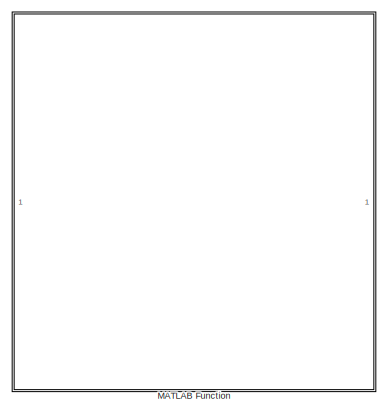
[diagram: root canvas - part 1/2, top right region]
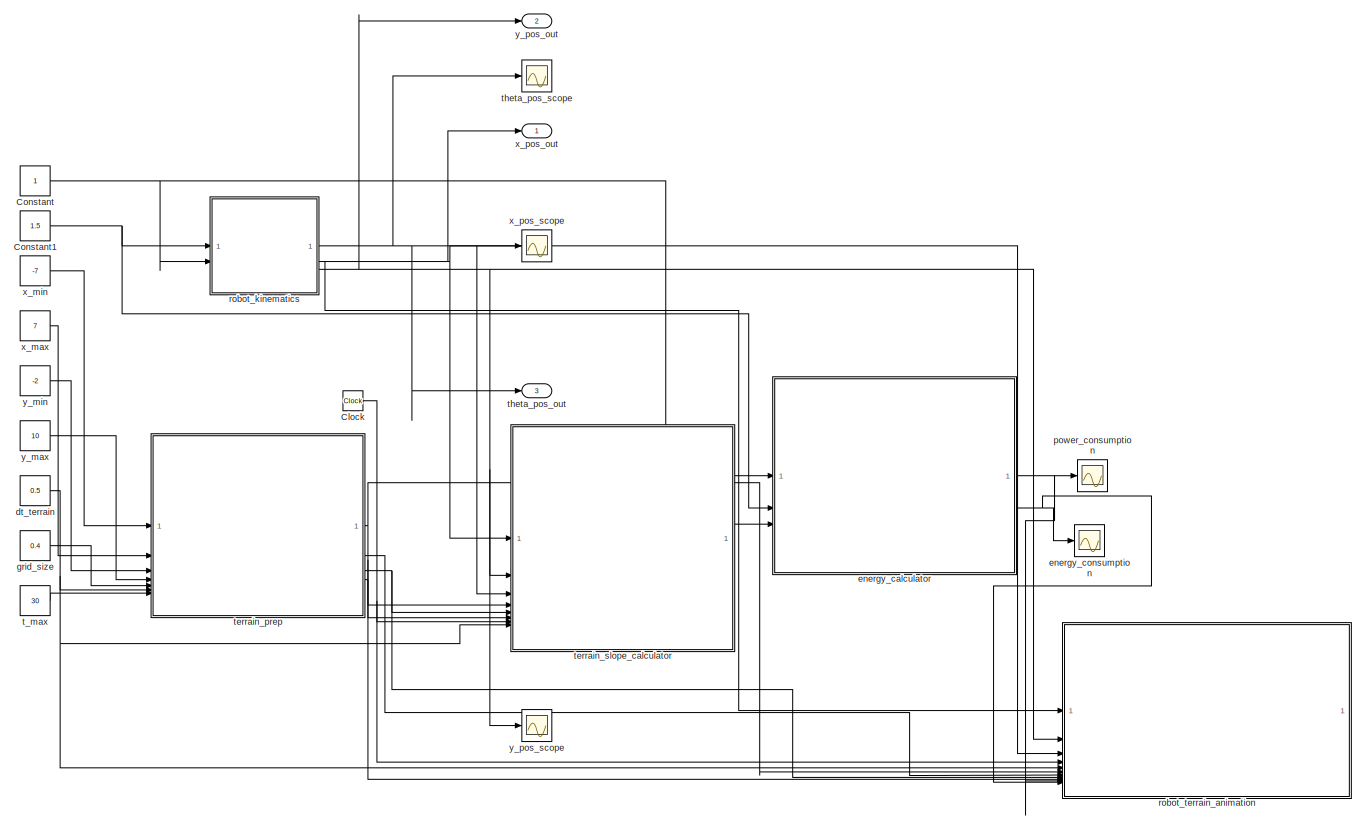
[diagram: root canvas - part 2/2, most of the canvas]
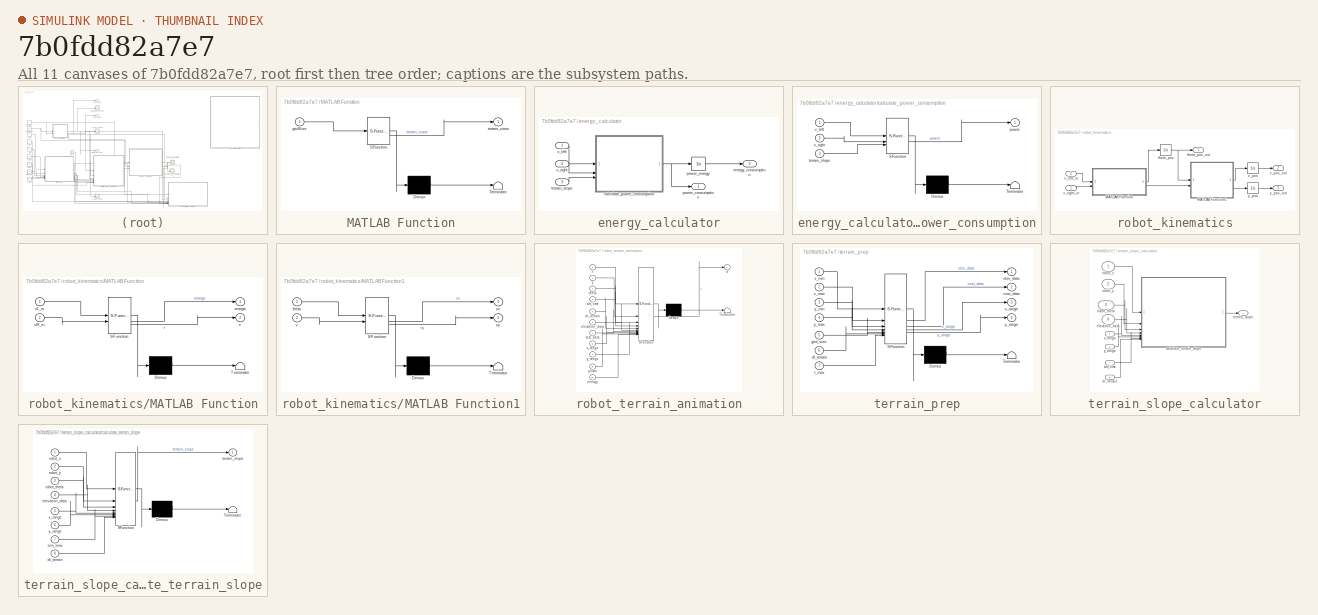
[diagram: thumbnail index - all 11 canvases of the model, root first then tree order]
MODEL slx_7b0fdd82a7e7
KIND model
CONFIG AbsTol = auto
CONFIG EnableMultiTasking = off
CONFIG FixedStep = 0.01
CONFIG MaxStep = 0.1
CONFIG MinStep = auto
CONFIG RelTol = 1e-3
CONFIG SampleTimeConstraint = Unconstrained
CONFIG SolverName = VariableStepAuto
CONFIG StartTime = 0.0
CONFIG StopTime = 50
BLOCK [Clock] Clock
BLOCK [Constant] Constant
BLOCK [Constant] Constant1
  Value = 1.5
BLOCK [SubSystem] MATLAB Function
  ErrorFcn = Stateflow.Translate.translate
  PermitHierarchicalResolution = ExplicitOnly
  SFBlockType = MATLAB Function
  TreatAsAtomicUnit = on
BLOCK [Demux] MATLAB Function/ Demux 
  Outputs = 1
BLOCK [S-Function] MATLAB Function/ SFunction 
  EnableBusSupport = off
  FunctionName = sf_sfun
  PortCounts = [1 2]
  SFcnIsStateOwnerBlock = off
  SFunctionDeploymentMode = off
  Tag = Stateflow S-Function 7
BLOCK [Terminator] MATLAB Function/ Terminator 
BLOCK [Inport] MATLAB Function/gridSize
BLOCK [Outport] MATLAB Function/terrain_costs
BLOCK [Constant] dt_terrain
  Value = 0.5
BLOCK [SubSystem] energy_calculator
BLOCK [SubSystem] energy_calculator/calculate_power_consumption
  ErrorFcn = Stateflow.Translate.translate
  PermitHierarchicalResolution = ExplicitOnly
  SFBlockType = MATLAB Function
  TreatAsAtomicUnit = on
BLOCK [Demux] energy_calculator/calculate_power_consumption/ Demux 
  Outputs = 1
BLOCK [S-Function] energy_calculator/calculate_power_consumption/ SFunction 
  EnableBusSupport = off
  FunctionName = sf_sfun
  PortCounts = [3 2]
  SFcnIsStateOwnerBlock = off
  SFunctionDeploymentMode = off
  Tag = Stateflow S-Function 6
BLOCK [Terminator] energy_calculator/calculate_power_consumption/ Terminator 
BLOCK [Outport] energy_calculator/calculate_power_consumption/power
BLOCK [Inport] energy_calculator/calculate_power_consumption/terrain_slope
  Port = 3
BLOCK [Inport] energy_calculator/calculate_power_consumption/v_left
BLOCK [Inport] energy_calculator/calculate_power_consumption/v_right
  Port = 2
BLOCK [Outport] energy_calculator/energy_consumption
  Port = 2
BLOCK [Outport] energy_calculator/power_consumption
BLOCK [Integrator] energy_calculator/power_energy
BLOCK [Inport] energy_calculator/terrain_slope
  Port = 3
BLOCK [Inport] energy_calculator/v_left
BLOCK [Inport] energy_calculator/v_right
  Port = 2
BLOCK [Scope] energy_consumption
  ActiveDisplayYMaximum = 141.6179419325106
  ActiveDisplayYMinimum = -15.735326881390064
  DataLoggingVariableName = ScopeData4
  Floating = off
  GraphicalSettings = {"Style":{"BackgroundColor":[0.12941176470588237,0.12941176470588237,0.12941176470588237],"AxesColor":[0.07058823529411765,0.07058823529411765,0.07058823529411765],"LabelsColor":[0.8509803921568627,0.8509803921568627,0.8509803921568627],"PreserveColors":false,"Visible":[true],"LineStyle":["-"],"LineWidth":[1.5],"BarWidth":[0.9],"LineColor":["auto"],"LineFaceAlpha":[1],"LineEdgeAlpha":[1],"Marker":...<+1907ch>
  MultipleDisplayCache = [{"MaxYLimMag":141.6179419325106,"MaxYLimReal":141.6179419325106,"MinYLimMag":0,"MinYLimReal":-15.735326881390064,"PlotAsMagnitudePhase":false,"ShowGrid":true,"ShowLegend":false,"Title":"%<SignalLabel>","YLabel":""}]
  NumInputPorts = 1
  ScopeFrameLocation = window
  Visible = on
  WasSavedAsWebScope = on
  WindowPosition = [575.000000,346.000000,560.000000,420.000000,]
BLOCK [Constant] grid_size
  Value = 0.4
BLOCK [Scope] power_consumption
  ActiveDisplayYMaximum = 3.4296984826344525
  ActiveDisplayYMinimum = 1.5743115904386631
  DataLoggingVariableName = ScopeData3
  Floating = off
  GraphicalSettings = {"Style":{"BackgroundColor":[0.12941176470588237,0.12941176470588237,0.12941176470588237],"AxesColor":[0.07058823529411765,0.07058823529411765,0.07058823529411765],"LabelsColor":[0.8509803921568627,0.8509803921568627,0.8509803921568627],"PreserveColors":false,"Visible":[true],"LineStyle":["-"],"LineWidth":[1.5],"BarWidth":[0.9],"LineColor":["auto"],"LineFaceAlpha":[1],"LineEdgeAlpha":[1],"Marker":...<+2035ch>
  MultipleDisplayCache = [{"MaxYLimMag":3.4296984826344525,"MaxYLimReal":3.4296984826344525,"MinYLimMag":1.5743115904386631,"MinYLimReal":1.5743115904386631,"PlotAsMagnitudePhase":false,"ShowGrid":true,"ShowLegend":false,"Title":"%<SignalLabel>","YLabel":""}]
  NumInputPorts = 1
  ScopeFrameLocation = window
  Visible = on
  WasSavedAsWebScope = on
  WindowPosition = [575.000000,187.000000,729.000000,579.000000,]
BLOCK [SubSystem] robot_kinematics
BLOCK [SubSystem] robot_kinematics/MATLAB Function
  ErrorFcn = Stateflow.Translate.translate
  PermitHierarchicalResolution = ExplicitOnly
  SFBlockType = MATLAB Function
  TreatAsAtomicUnit = on
BLOCK [Demux] robot_kinematics/MATLAB Function/ Demux 
  Outputs = 1
BLOCK [S-Function] robot_kinematics/MATLAB Function/ SFunction 
  EnableBusSupport = off
  FunctionName = sf_sfun
  PortCounts = [2 3]
  SFcnIsStateOwnerBlock = off
  SFunctionDeploymentMode = off
  Tag = Stateflow S-Function 1
BLOCK [Terminator] robot_kinematics/MATLAB Function/ Terminator 
BLOCK [Outport] robot_kinematics/MATLAB Function/omega
BLOCK [Outport] robot_kinematics/MATLAB Function/v
  Port = 2
BLOCK [Inport] robot_kinematics/MATLAB Function/vL_in
BLOCK [Inport] robot_kinematics/MATLAB Function/vR_in
  Port = 2
BLOCK [SubSystem] robot_kinematics/MATLAB Function1
  ErrorFcn = Stateflow.Translate.translate
  PermitHierarchicalResolution = ExplicitOnly
  SFBlockType = MATLAB Function
  TreatAsAtomicUnit = on
BLOCK [Demux] robot_kinematics/MATLAB Function1/ Demux 
  Outputs = 1
BLOCK [S-Function] robot_kinematics/MATLAB Function1/ SFunction 
  EnableBusSupport = off
  FunctionName = sf_sfun
  PortCounts = [2 3]
  SFcnIsStateOwnerBlock = off
  SFunctionDeploymentMode = off
  Tag = Stateflow S-Function 3
BLOCK [Terminator] robot_kinematics/MATLAB Function1/ Terminator 
BLOCK [Inport] robot_kinematics/MATLAB Function1/theta
BLOCK [Inport] robot_kinematics/MATLAB Function1/v
  Port = 2
BLOCK [Outport] robot_kinematics/MATLAB Function1/vx
BLOCK [Outport] robot_kinematics/MATLAB Function1/vy
  Port = 2
BLOCK [Integrator] robot_kinematics/theta_pos
BLOCK [Outport] robot_kinematics/theta_pos_out
BLOCK [Inport] robot_kinematics/v_left_in
  Port = 2
BLOCK [Inport] robot_kinematics/v_right_in
BLOCK [Integrator] robot_kinematics/x_pos
  ContinuousStateAttributes = 'x_position'
BLOCK [Outport] robot_kinematics/x_pos_out
  Port = 2
BLOCK [Integrator] robot_kinematics/y_pos
  ContinuousStateAttributes = 'y_position'
BLOCK [Outport] robot_kinematics/y_pos_out
  Port = 3
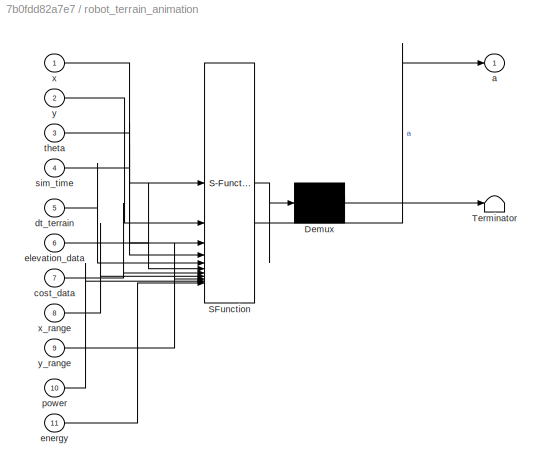
BLOCK [SubSystem] robot_terrain_animation
  ErrorFcn = Stateflow.Translate.translate
  PermitHierarchicalResolution = ExplicitOnly
  SFBlockType = MATLAB Function
  SystemSampleTime = 0.5
  TreatAsAtomicUnit = on
BLOCK [Demux] robot_terrain_animation/ Demux 
  Outputs = 1
BLOCK [S-Function] robot_terrain_animation/ SFunction 
  EnableBusSupport = off
  FunctionName = sf_sfun
  PortCounts = [11 2]
  SFcnIsStateOwnerBlock = off
  SFunctionDeploymentMode = off
  Tag = Stateflow S-Function 2
BLOCK [Terminator] robot_terrain_animation/ Terminator 
BLOCK [Outport] robot_terrain_animation/a
BLOCK [Inport] robot_terrain_animation/cost_data
  Port = 7
BLOCK [Inport] robot_terrain_animation/dt_terrain
  Port = 5
BLOCK [Inport] robot_terrain_animation/elevation_data
  Port = 6
BLOCK [Inport] robot_terrain_animation/energy
  Port = 11
BLOCK [Inport] robot_terrain_animation/power
  Port = 10
BLOCK [Inport] robot_terrain_animation/sim_time
  Port = 4
BLOCK [Inport] robot_terrain_animation/theta
  Port = 3
BLOCK [Inport] robot_terrain_animation/x
BLOCK [Inport] robot_terrain_animation/x_range
  Port = 8
BLOCK [Inport] robot_terrain_animation/y
  Port = 2
BLOCK [Inport] robot_terrain_animation/y_range
  Port = 9
BLOCK [Constant] t_max
  Value = 30
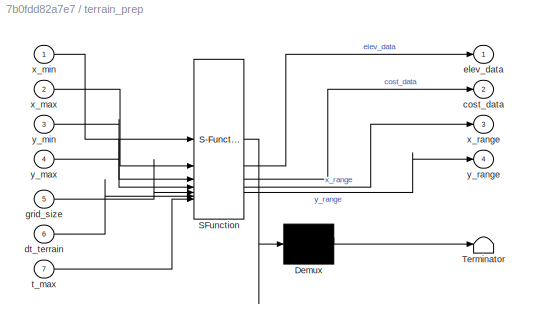
BLOCK [SubSystem] terrain_prep
  ErrorFcn = Stateflow.Translate.translate
  PermitHierarchicalResolution = ExplicitOnly
  SFBlockType = MATLAB Function
  TreatAsAtomicUnit = on
BLOCK [Demux] terrain_prep/ Demux 
  Outputs = 1
BLOCK [S-Function] terrain_prep/ SFunction 
  EnableBusSupport = off
  FunctionName = sf_sfun
  PortCounts = [7 5]
  SFcnIsStateOwnerBlock = off
  SFunctionDeploymentMode = off
  Tag = Stateflow S-Function 4
BLOCK [Terminator] terrain_prep/ Terminator 
BLOCK [Outport] terrain_prep/cost_data
  Port = 2
BLOCK [Inport] terrain_prep/dt_terrain
  Port = 6
BLOCK [Outport] terrain_prep/elev_data
BLOCK [Inport] terrain_prep/grid_size
  Port = 5
BLOCK [Inport] terrain_prep/t_max
  Port = 7
BLOCK [Inport] terrain_prep/x_max
  Port = 2
BLOCK [Inport] terrain_prep/x_min
BLOCK [Outport] terrain_prep/x_range
  Port = 3
BLOCK [Inport] terrain_prep/y_max
  Port = 4
BLOCK [Inport] terrain_prep/y_min
  Port = 3
BLOCK [Outport] terrain_prep/y_range
  Port = 4
BLOCK [SubSystem] terrain_slope_calculator
BLOCK [SubSystem] terrain_slope_calculator/calculate_terrain_slope
  ErrorFcn = Stateflow.Translate.translate
  PermitHierarchicalResolution = ExplicitOnly
  SFBlockType = MATLAB Function
  SystemSampleTime = 0.01
  TreatAsAtomicUnit = on
BLOCK [Demux] terrain_slope_calculator/calculate_terrain_slope/ Demux 
  Outputs = 1
BLOCK [S-Function] terrain_slope_calculator/calculate_terrain_slope/ SFunction 
  EnableBusSupport = off
  FunctionName = sf_sfun
  PortCounts = [8 2]
  SFcnIsStateOwnerBlock = off
  SFunctionDeploymentMode = off
  Tag = Stateflow S-Function 5
BLOCK [Terminator] terrain_slope_calculator/calculate_terrain_slope/ Terminator 
BLOCK [Inport] terrain_slope_calculator/calculate_terrain_slope/dt_terrain
  Port = 8
BLOCK [Inport] terrain_slope_calculator/calculate_terrain_slope/elevation_data
  Port = 4
BLOCK [Inport] terrain_slope_calculator/calculate_terrain_slope/robot_theta
  Port = 3
BLOCK [Inport] terrain_slope_calculator/calculate_terrain_slope/robot_x
BLOCK [Inport] terrain_slope_calculator/calculate_terrain_slope/robot_y
  Port = 2
BLOCK [Inport] terrain_slope_calculator/calculate_terrain_slope/sim_time
  Port = 7
BLOCK [Outport] terrain_slope_calculator/calculate_terrain_slope/terrain_slope
BLOCK [Inport] terrain_slope_calculator/calculate_terrain_slope/x_range
  Port = 5
BLOCK [Inport] terrain_slope_calculator/calculate_terrain_slope/y_range
  Port = 6
BLOCK [Inport] terrain_slope_calculator/dt_terrain
  Port = 8
BLOCK [Inport] terrain_slope_calculator/elevation_data
  Port = 4
BLOCK [Inport] terrain_slope_calculator/robot_theta
  Port = 3
BLOCK [Inport] terrain_slope_calculator/robot_x
BLOCK [Inport] terrain_slope_calculator/robot_y
  Port = 2
BLOCK [Inport] terrain_slope_calculator/sim_time
  Port = 7
BLOCK [Outport] terrain_slope_calculator/terrain_slope
BLOCK [Inport] terrain_slope_calculator/x_range
  Port = 5
BLOCK [Inport] terrain_slope_calculator/y_range
  Port = 6
BLOCK [Outport] theta_pos_out
  Port = 3
BLOCK [Scope] theta_pos_scope
  ActiveDisplayYMaximum = 1
  ActiveDisplayYMinimum = -1
  Floating = off
  GraphicalSettings = {"Style":{"BackgroundColor":[0.12941176470588237,0.12941176470588237,0.12941176470588237],"AxesColor":[0.07058823529411765,0.07058823529411765,0.07058823529411765],"LabelsColor":[0.8509803921568627,0.8509803921568627,0.8509803921568627],"PreserveColors":false,"Visible":[true],"LineStyle":["-"],"LineWidth":[1.5],"BarWidth":[0.9],"LineColor":["auto"],"LineFaceAlpha":[1],"LineEdgeAlpha":[1],"Marker":...<+1952ch>
  MultipleDisplayCache = [{"MaxYLimMag":1,"MaxYLimReal":1,"MinYLimMag":0,"MinYLimReal":-1,"PlotAsMagnitudePhase":false,"ShowGrid":true,"ShowLegend":false,"Title":"%<SignalLabel>","YLabel":""}]
  NumInputPorts = 1
  ScopeFrameLocation = window
  WasSavedAsWebScope = on
  WindowPosition = [575.000000,346.000000,560.000000,420.000000,]
BLOCK [Constant] x_max
  Value = 7
BLOCK [Constant] x_min
  Value = -7
BLOCK [Outport] x_pos_out
BLOCK [Scope] x_pos_scope
  ActiveDisplayYMaximum = 1
  ActiveDisplayYMinimum = -1
  DataLoggingVariableName = ScopeData1
  Floating = off
  GraphicalSettings = {"Style":{"BackgroundColor":[0.12941176470588237,0.12941176470588237,0.12941176470588237],"AxesColor":[0.07058823529411765,0.07058823529411765,0.07058823529411765],"LabelsColor":[0.8509803921568627,0.8509803921568627,0.8509803921568627],"PreserveColors":false,"Visible":[true],"LineStyle":["-"],"LineWidth":[1.5],"BarWidth":[0.9],"LineColor":["auto"],"LineFaceAlpha":[1],"LineEdgeAlpha":[1],"Marker":...<+1992ch>
  MultipleDisplayCache = [{"MaxYLimMag":1,"MaxYLimReal":1,"MinYLimMag":0,"MinYLimReal":-1,"PlotAsMagnitudePhase":false,"ShowGrid":true,"ShowLegend":false,"Title":"%<SignalLabel>","YLabel":""}]
  NumInputPorts = 1
  ScopeFrameLocation = window
  WasSavedAsWebScope = on
  WindowPosition = [575.000000,346.000000,560.000000,420.000000,]
BLOCK [Constant] y_max
  Value = 10
BLOCK [Constant] y_min
  Value = -2
BLOCK [Outport] y_pos_out
  Port = 2
BLOCK [Scope] y_pos_scope
  ActiveDisplayYMaximum = 1
  ActiveDisplayYMinimum = -1
  DataLoggingVariableName = ScopeData2
  Floating = off
  GraphicalSettings = {"Style":{"BackgroundColor":[0.12941176470588237,0.12941176470588237,0.12941176470588237],"AxesColor":[0.07058823529411765,0.07058823529411765,0.07058823529411765],"LabelsColor":[0.8509803921568627,0.8509803921568627,0.8509803921568627],"PreserveColors":false,"Visible":[true],"LineStyle":["-"],"LineWidth":[1.5],"BarWidth":[0.9],"LineColor":["auto"],"LineFaceAlpha":[1],"LineEdgeAlpha":[1],"Marker":...<+2002ch>
  MultipleDisplayCache = [{"MaxYLimMag":1,"MaxYLimReal":1,"MinYLimMag":0,"MinYLimReal":-1,"PlotAsMagnitudePhase":false,"ShowGrid":true,"ShowLegend":false,"Title":"%<SignalLabel>","YLabel":""}]
  NumInputPorts = 1
  ScopeFrameLocation = window
  WasSavedAsWebScope = on
  WindowPosition = [575.000000,346.000000,560.000000,420.000000,]
NET Clock:1 -> robot_terrain_animation:4, terrain_slope_calculator:7
NET Constant1:1 -> energy_calculator:2, robot_kinematics:1
NET Constant:1 -> energy_calculator:1, robot_kinematics:2
NET dt_terrain:1 -> robot_terrain_animation:5, terrain_prep:6, terrain_slope_calculator:8
NET energy_calculator/calculate_power_consumption:1 -> energy_calculator/power_consumption:1, energy_calculator/power_energy:1
LINE energy_calculator/power_energy:1 -> energy_calculator/energy_consumption:1
LINE energy_calculator/terrain_slope:1 -> energy_calculator/calculate_power_consumption:3
LINE energy_calculator/v_left:1 -> energy_calculator/calculate_power_consumption:1
LINE energy_calculator/v_right:1 -> energy_calculator/calculate_power_consumption:2
NET energy_calculator:1 -> power_consumption:1, robot_terrain_animation:10
NET energy_calculator:2 -> energy_consumption:1, robot_terrain_animation:11
LINE grid_size:1 -> terrain_prep:5
LINE robot_kinematics/MATLAB Function1:1 -> robot_kinematics/x_pos:1
LINE robot_kinematics/MATLAB Function1:2 -> robot_kinematics/y_pos:1
LINE robot_kinematics/MATLAB Function:1 -> robot_kinematics/theta_pos:1
LINE robot_kinematics/MATLAB Function:2 -> robot_kinematics/MATLAB Function1:2
NET robot_kinematics/theta_pos:1 -> robot_kinematics/MATLAB Function1:1, robot_kinematics/theta_pos_out:1
LINE robot_kinematics/v_left_in:1 -> robot_kinematics/MATLAB Function:1
LINE robot_kinematics/v_right_in:1 -> robot_kinematics/MATLAB Function:2
LINE robot_kinematics/x_pos:1 -> robot_kinematics/x_pos_out:1
LINE robot_kinematics/y_pos:1 -> robot_kinematics/y_pos_out:1
NET robot_kinematics:1 -> robot_terrain_animation:3, terrain_slope_calculator:3, theta_pos_out:1, theta_pos_scope:1
NET robot_kinematics:2 -> robot_terrain_animation:1, terrain_slope_calculator:1, x_pos_out:1, x_pos_scope:1
NET robot_kinematics:3 -> robot_terrain_animation:2, terrain_slope_calculator:2, y_pos_out:1, y_pos_scope:1
LINE t_max:1 -> terrain_prep:7
NET terrain_prep:1 -> robot_terrain_animation:6, terrain_slope_calculator:4
LINE terrain_prep:2 -> robot_terrain_animation:7
NET terrain_prep:3 -> robot_terrain_animation:8, terrain_slope_calculator:5
NET terrain_prep:4 -> robot_terrain_animation:9, terrain_slope_calculator:6
LINE terrain_slope_calculator/calculate_terrain_slope:1 -> terrain_slope_calculator/terrain_slope:1
LINE terrain_slope_calculator/dt_terrain:1 -> terrain_slope_calculator/calculate_terrain_slope:8
LINE terrain_slope_calculator/elevation_data:1 -> terrain_slope_calculator/calculate_terrain_slope:4
LINE terrain_slope_calculator/robot_theta:1 -> terrain_slope_calculator/calculate_terrain_slope:3
LINE terrain_slope_calculator/robot_x:1 -> terrain_slope_calculator/calculate_terrain_slope:1
LINE terrain_slope_calculator/robot_y:1 -> terrain_slope_calculator/calculate_terrain_slope:2
LINE terrain_slope_calculator/sim_time:1 -> terrain_slope_calculator/calculate_terrain_slope:7
LINE terrain_slope_calculator/x_range:1 -> terrain_slope_calculator/calculate_terrain_slope:5
LINE terrain_slope_calculator/y_range:1 -> terrain_slope_calculator/calculate_terrain_slope:6
LINE terrain_slope_calculator:1 -> energy_calculator:3
LINE x_max:1 -> terrain_prep:2
LINE x_min:1 -> terrain_prep:1
LINE y_max:1 -> terrain_prep:4
LINE y_min:1 -> terrain_prep:3
note: NET lines group one-source signal fan-out (src -> all destinations, sorted); 1:1 wires keep LINE
CHART robot_kinematics/MATLAB Function states=1 transitions=1
  STATE_LABEL 'eML_blk_kernel()'
  STATE_LABEL 'SCRIPT:\nfunction [omega,v] = velocity_transform(vL_in,vR_in)\n\n    omega = (vR_in-vL_in)/2;\n    v = (vR_in+vL_in)/2;\nend\n'
CHART robot_terrain_animation states=1 transitions=1
  STATE_LABEL 'eML_blk_kernel()'
  STATE_LABEL 'SCRIPT:\nfunction a = robot_terrain_animation(x, y, theta, sim_time, dt_terrain, elevation_data, cost_data, x_range, y_range, power, energy)\n%#codegen\n    persistent trail_x trail_y X_grid Y_grid\n    \n    % Initialize grid (do once)\n    if isempty(X_grid)\n        [X_grid, Y_grid] = meshgrid(x_range, y_range);\n        trail_x = [];\n        trail_y = [];\n    end\n    \n    % Calculate current terrain t...<+1180ch>'
CHART robot_kinematics/MATLAB Function1 states=1 transitions=1
  STATE_LABEL 'eML_blk_kernel()'
  STATE_LABEL 'SCRIPT:\nfunction [vx,vy] = velocity_transform2(theta,v)\n   vx = v*cos(theta);\n   vy = v*sin(theta);\nend'
CHART terrain_prep states=1 transitions=1
  STATE_LABEL 'eML_blk_kernel()'
  STATE_LABEL 'SCRIPT:\nfunction [elev_data, cost_data, x_range, y_range] = terrain_prep(x_min,x_max,y_min,y_max,grid_size,dt_terrain,t_max)\n    % Define spatial grid - these should match your animation axis limits\n    num_x = (x_max - x_min)/grid_size + 1;\n    num_y = (y_max - y_min)/grid_size + 1;\n    x_range = linspace(x_min, x_max, num_x);\n    y_range = linspace(y_min, y_max, num_y);\n    \n    % Time parameter...<+742ch>'
CHART terrain_slope_calculator/calculate_terrain_slope states=1 transitions=1
  STATE_LABEL 'eML_blk_kernel()'
  STATE_LABEL 'SCRIPT:\nfunction terrain_slope = calculate_terrain_slope(robot_x, robot_y, robot_theta, elevation_data, x_range, y_range, sim_time, dt_terrain)\n    \n    time_index = max(1, min(round(sim_time/dt_terrain)+1, size(elevation_data,3)));\n    % Find robot position in grid coordinates\n    x_idx = max(1, min(length(x_range), round((robot_x - x_range(1)) / (x_range(2) - x_range(1))) + 1));\n    y_idx = max(...<+912ch>'
CHART energy_calculator/calculate_power_consumption states=1 transitions=1
  STATE_LABEL 'eML_blk_kernel()'
  STATE_LABEL 'SCRIPT:\nfunction power = calculate_power_consumption(v_left, v_right, terrain_slope)\n\n    % Base power consumption (flat terrain)\n    base_power_left = abs(v_left);% * 10;   % 10 watts per m/s\n    base_power_right = abs(v_right);% * 10; % 10 watts per m/s\n    \n    % Slope effect multiplier\n    % Positive slope (uphill) increases power, negative (downhill) decreases it\n    slope_multiplier = 1 + te...<+247ch>'
CHART MATLAB Function states=1 transitions=1
  STATE_LABEL 'eML_blk_kernel()'
  STATE_LABEL "SCRIPT:\nfunction terrain_costs = calc_terrain_costs(gridSize)\n    % Define grid dimensions\n    \n    % Define terrain types and their properties, INCLUDING COSTS\n    terrainTypes = {\n        struct('name', 'Grass', 'color', [0.3 0.6 0.2], 'cost', 1.0);     % Green, low cost\n        struct('name', 'Sand', 'color', [0.9 0.8 0.5], 'cost', 2.0);      % Light Brown/Yellow, moderate cost\n        struct('...<+2369ch>"
CHART  states=0 transitions=0
CHART  states=0 transitions=0
CHART  states=0 transitions=0
CHART  states=0 transitions=0
CHART  states=0 transitions=0
CHART  states=0 transitions=0
CHART  states=0 transitions=0
